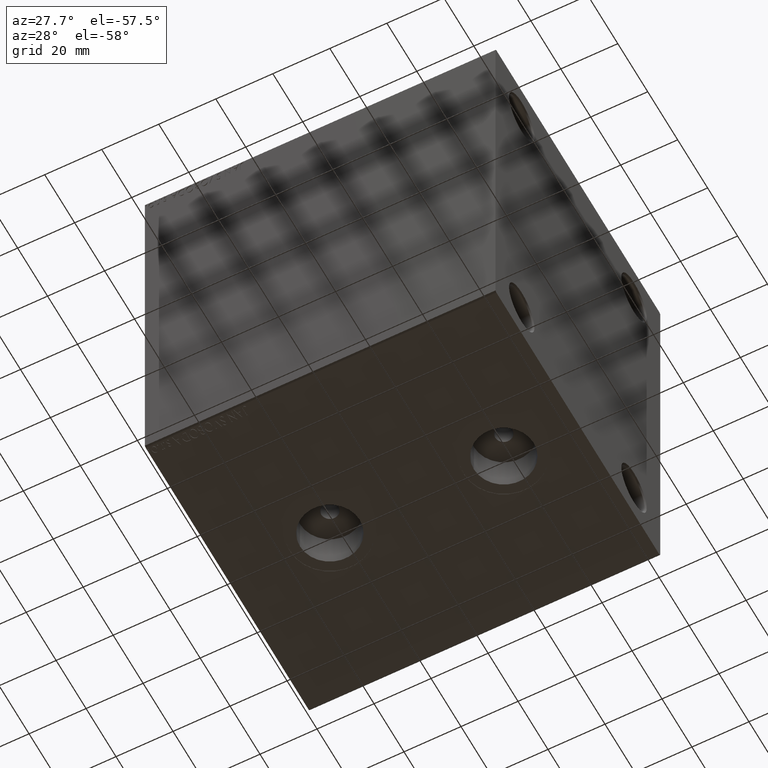
[diagram: clean part render]
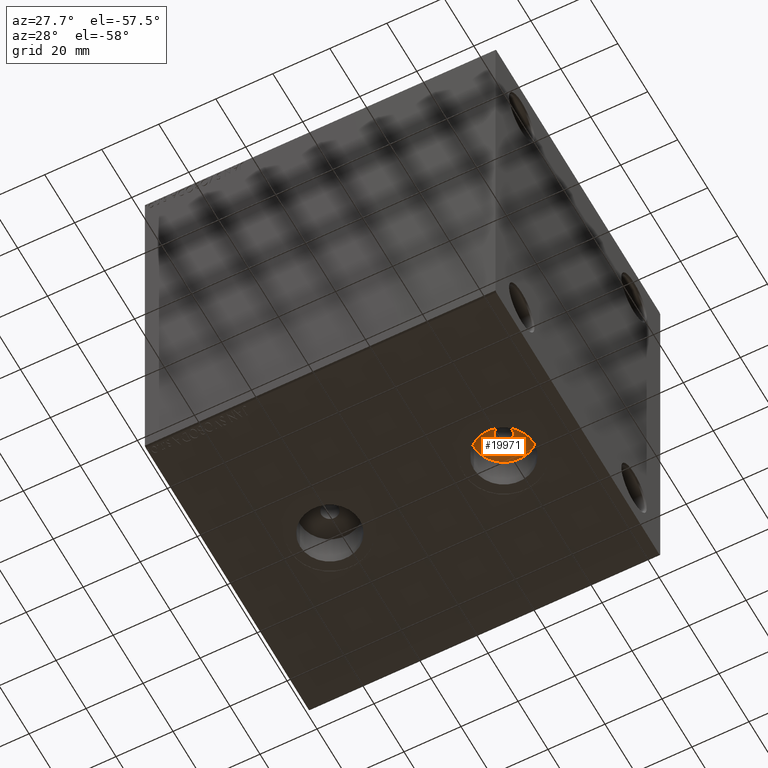
[diagram: same view with one face highlighted and labeled with its STEP entity id]
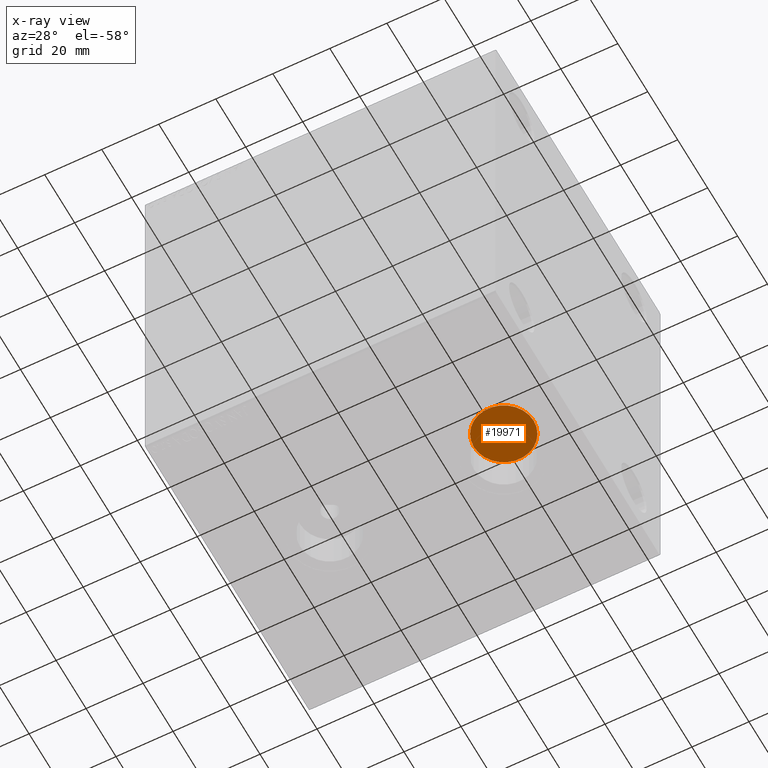
[diagram: x-ray of the same camera — body ghosted, the highlighted face saturated]
A machine part, auxiliary view. The second image highlights one B-rep face of the part: STEP entity #19971.
The next image is the same camera in x-ray: the body ghosted, the highlighted face saturated — about 0% of this face is hidden behind the body in this view.
In plain terms, the highlighted planar face has unit normal (0, 0, -1).
Its self-contained STEP definition (entity closure, byte-faithful):
#382 = EDGE_CURVE ( 'NONE', #33186, #6738, #7308, .T. ) ;
#566 = CARTESIAN_POINT ( 'NONE',  ( 86.51999999999999602, -3.896177599120782744E-15, -57.00000000000000000 ) ) ;
#695 = EDGE_LOOP ( 'NONE', ( #19896, #23376 ) ) ;
#1187 = CIRCLE ( 'NONE', #17394, 10.48000000000000398 ) ;
#3766 = CARTESIAN_POINT ( 'NONE',  ( 97.00000000000000000, -3.896177599120782744E-15, -57.00000000000000000 ) ) ;
#5261 = DIRECTION ( 'NONE',  ( 0.000000000000000000, 0.000000000000000000, -1.000000000000000000 ) ) ;
#6738 = VERTEX_POINT ( 'NONE', #21485 ) ;
#7308 = CIRCLE ( 'NONE', #18323, 3.000000000000002665 ) ;
#7326 = EDGE_CURVE ( 'NONE', #23237, #15583, #7490, .T. ) ;
#7368 = DIRECTION ( 'NONE',  ( -1.000000000000000000, 0.000000000000000000, 0.000000000000000000 ) ) ;
#7490 = CIRCLE ( 'NONE', #42726, 10.48000000000000398 ) ;
#7743 = AXIS2_PLACEMENT_3D ( 'NONE', #8006, #31923, #10780 ) ;
#7776 = FACE_BOUND ( 'NONE', #28363, .T. ) ;
#7851 = ORIENTED_EDGE ( 'NONE', *, *, #382, .F. ) ;
#8006 = CARTESIAN_POINT ( 'NONE',  ( 0.000000000000000000, 0.000000000000000000, -57.00000000000000000 ) ) ;
#10780 = DIRECTION ( 'NONE',  ( -1.000000000000000000, 0.000000000000000000, -0.000000000000000000 ) ) ;
#10819 = CARTESIAN_POINT ( 'NONE',  ( 97.00000000000000000, -3.896177599120782744E-15, -57.00000000000000000 ) ) ;
#10951 = EDGE_CURVE ( 'NONE', #6738, #33186, #21523, .T. ) ;
#11007 = FACE_OUTER_BOUND ( 'NONE', #695, .T. ) ;
#11765 = DIRECTION ( 'NONE',  ( 0.000000000000000000, 0.000000000000000000, -1.000000000000000000 ) ) ;
#13641 = CARTESIAN_POINT ( 'NONE',  ( 94.00000000000000000, -3.896177599120782744E-15, -57.00000000000000000 ) ) ;
#14463 = ORIENTED_EDGE ( 'NONE', *, *, #10951, .F. ) ;
#15583 = VERTEX_POINT ( 'NONE', #566 ) ;
#17394 = AXIS2_PLACEMENT_3D ( 'NONE', #38695, #24900, #35933 ) ;
#18323 = AXIS2_PLACEMENT_3D ( 'NONE', #43899, #5261, #36552 ) ;
#19896 = ORIENTED_EDGE ( 'NONE', *, *, #23611, .T. ) ;
#19971 = ADVANCED_FACE ( 'NONE', ( #7776, #11007 ), #21794, .T. ) ;
#21485 = CARTESIAN_POINT ( 'NONE',  ( 100.0000000000000000, -3.528783559376575328E-15, -57.00000000000000000 ) ) ;
#21523 = CIRCLE ( 'NONE', #28129, 3.000000000000002665 ) ;
#21794 = PLANE ( 'NONE',  #7743 ) ;
#23237 = VERTEX_POINT ( 'NONE', #44979 ) ;
#23376 = ORIENTED_EDGE ( 'NONE', *, *, #7326, .T. ) ;
#23611 = EDGE_CURVE ( 'NONE', #15583, #23237, #1187, .T. ) ;
#24831 = DIRECTION ( 'NONE',  ( 0.000000000000000000, 0.000000000000000000, -1.000000000000000000 ) ) ;
#24900 = DIRECTION ( 'NONE',  ( 0.000000000000000000, 0.000000000000000000, -1.000000000000000000 ) ) ;
#28129 = AXIS2_PLACEMENT_3D ( 'NONE', #3766, #11765, #36598 ) ;
#28363 = EDGE_LOOP ( 'NONE', ( #7851, #14463 ) ) ;
#31923 = DIRECTION ( 'NONE',  ( 0.000000000000000000, 0.000000000000000000, -1.000000000000000000 ) ) ;
#33186 = VERTEX_POINT ( 'NONE', #13641 ) ;
#35933 = DIRECTION ( 'NONE',  ( -1.000000000000000000, 0.000000000000000000, 0.000000000000000000 ) ) ;
#36552 = DIRECTION ( 'NONE',  ( -1.000000000000000000, 0.000000000000000000, 0.000000000000000000 ) ) ;
#36598 = DIRECTION ( 'NONE',  ( -1.000000000000000000, 0.000000000000000000, 0.000000000000000000 ) ) ;
#38695 = CARTESIAN_POINT ( 'NONE',  ( 97.00000000000000000, -3.896177599120782744E-15, -57.00000000000000000 ) ) ;
#42726 = AXIS2_PLACEMENT_3D ( 'NONE', #10819, #24831, #7368 ) ;
#43899 = CARTESIAN_POINT ( 'NONE',  ( 97.00000000000000000, -3.896177599120782744E-15, -57.00000000000000000 ) ) ;
#44979 = CARTESIAN_POINT ( 'NONE',  ( 107.4800000000000040, -2.612747753614357256E-15, -57.00000000000000000 ) ) ;